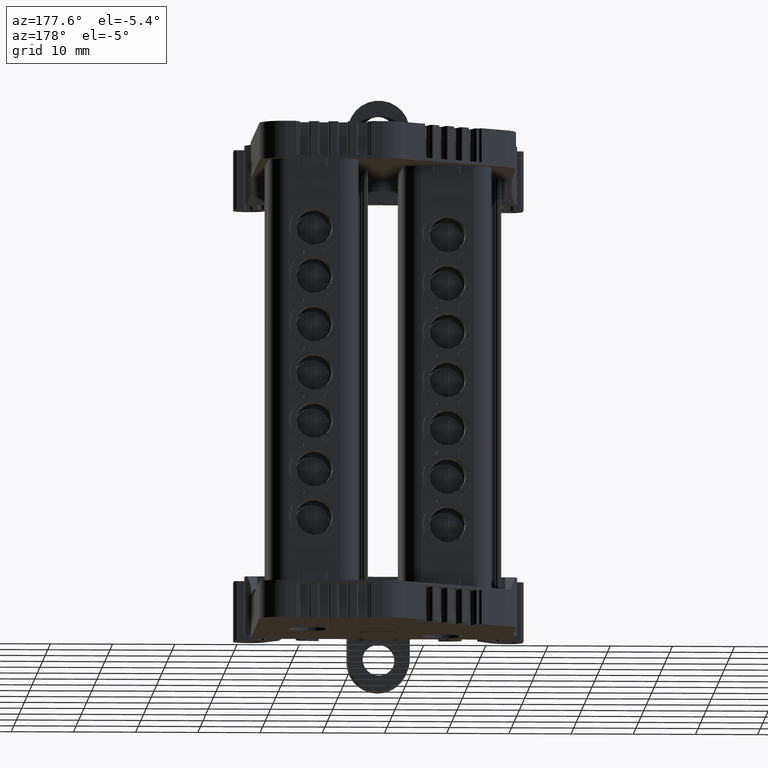
[diagram: clean part render]
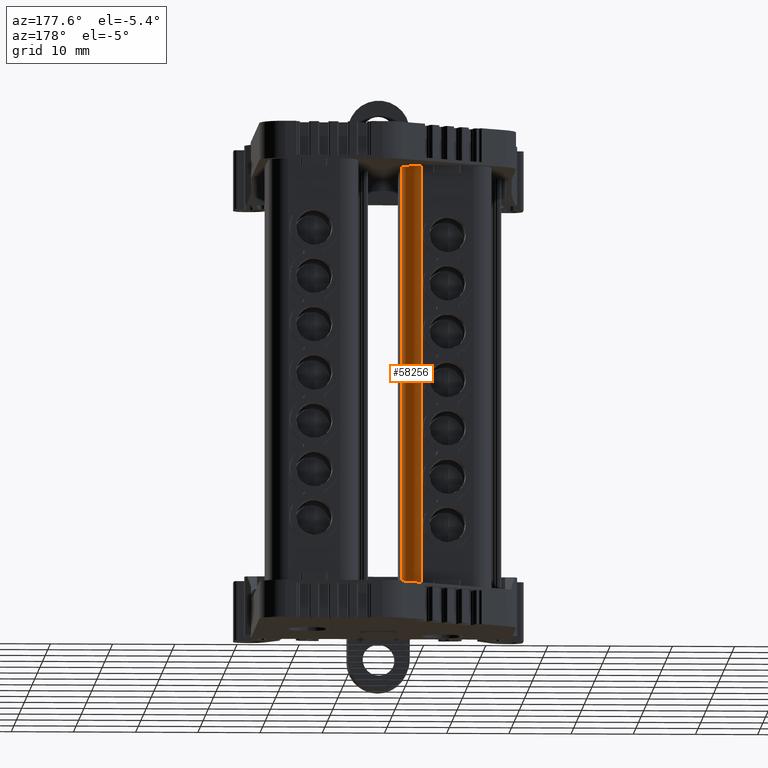
[diagram: same view with one face highlighted and labeled with its STEP entity id]
A machine part, auxiliary view. The second image highlights one B-rep face of the part: STEP entity #58256.
In plain terms, the highlighted cylindrical surface (edge-blend (fillet) strip) has radius 2.9989 mm, axis along (-0, 0, -1).
Its self-contained STEP definition (entity closure, byte-faithful):
#4459 = DIRECTION ( 'NONE',  ( -6.982962677686110500E-015, 1.604252062634190000E-014, -1.000000000000000000 ) ) ;
#4460 = DIRECTION ( 'NONE',  ( 0.0000000000000000000, 1.000000000000000000, 1.619688762850597300E-014 ) ) ;
#4490 = CARTESIAN_POINT ( 'NONE',  ( -52.29034639560725900, 33.55203185266567100, -23.91321079722527500 ) ) ;
#4502 = FACE_OUTER_BOUND ( 'NONE', #49983, .T. ) ;
#4506 = CYLINDRICAL_SURFACE ( 'NONE', #11100, 2.998863636113957600 ) ;
#7417 = VECTOR ( 'NONE', #22574, 1000.000000000000000 ) ;
#7440 = CIRCLE ( 'NONE', #7445, 2.998863636113957600 ) ;
#7445 = AXIS2_PLACEMENT_3D ( 'NONE', #22752, #22780, #22754 ) ;
#7513 = AXIS2_PLACEMENT_3D ( 'NONE', #23019, #22978, #22947 ) ;
#7537 = CIRCLE ( 'NONE', #7513, 2.998863636113957600 ) ;
#11100 = AXIS2_PLACEMENT_3D ( 'NONE', #4490, #4459, #4460 ) ;
#22440 = LINE ( 'NONE', #22572, #7417 ) ;
#22572 = CARTESIAN_POINT ( 'NONE',  ( -49.29193950095025700, 33.60436923969235300, -37.10821079711178100 ) ) ;
#22574 = DIRECTION ( 'NONE',  ( -6.700897813742065900E-015, -1.169646064160809000E-016, -1.000000000000000000 ) ) ;
#22752 = CARTESIAN_POINT ( 'NONE',  ( -52.29034639560686800, 33.55203185266477600, 31.97218928989240500 ) ) ;
#22754 = DIRECTION ( 'NONE',  ( 0.0000000000000000000, 1.000000000000000000, 1.619688762850597300E-014 ) ) ;
#22780 = DIRECTION ( 'NONE',  ( -6.982962677686110500E-015, 1.604252062634190000E-014, -1.000000000000000000 ) ) ;
#22947 = DIRECTION ( 'NONE',  ( 2.313841089786567700E-015, 1.000000000000000000, 1.619688762850597300E-014 ) ) ;
#22978 = DIRECTION ( 'NONE',  ( 6.982962677686110500E-015, -1.604252062634190000E-014, 1.000000000000000000 ) ) ;
#23019 = CARTESIAN_POINT ( 'NONE',  ( -52.29034639560733700, 33.55203185266586300, -36.09779384098942500 ) ) ;
#25816 = DIRECTION ( 'NONE',  ( 6.982962677686110500E-015, -1.604252062634190000E-014, 1.000000000000000000 ) ) ;
#25819 = LINE ( 'NONE', #25833, #49736 ) ;
#25833 = CARTESIAN_POINT ( 'NONE',  ( -52.29034639560725900, 36.55089548877963100, -23.91321079722522900 ) ) ;
#32435 = CARTESIAN_POINT ( 'NONE',  ( -52.29034639560731500, 36.55089548877997900, -36.09779384098939700 ) ) ;
#32481 = CARTESIAN_POINT ( 'NONE',  ( -52.29034639560686800, 36.55089548877930400, 31.97218928989235900 ) ) ;
#33047 = CARTESIAN_POINT ( 'NONE',  ( -49.29193950094992300, 33.60436923969236000, 31.97218928989244100 ) ) ;
#33117 = CARTESIAN_POINT ( 'NONE',  ( -49.29193950095030600, 33.60436923969243800, -36.09779384098944600 ) ) ;
#49736 = VECTOR ( 'NONE', #25816, 1000.000000000000000 ) ;
#49983 = EDGE_LOOP ( 'NONE', ( #55191, #55250, #55225, #55193 ) ) ;
#50230 = VERTEX_POINT ( 'NONE', #33047 ) ;
#50337 = VERTEX_POINT ( 'NONE', #33117 ) ;
#51466 = VERTEX_POINT ( 'NONE', #32435 ) ;
#51478 = VERTEX_POINT ( 'NONE', #32481 ) ;
#52785 = EDGE_CURVE ( 'NONE', #51466, #51478, #25819, .T. ) ;
#53398 = EDGE_CURVE ( 'NONE', #50230, #50337, #22440, .T. ) ;
#53427 = EDGE_CURVE ( 'NONE', #51478, #50230, #7440, .T. ) ;
#53463 = EDGE_CURVE ( 'NONE', #50337, #51466, #7537, .T. ) ;
#55191 = ORIENTED_EDGE ( 'NONE', *, *, #53463, .T. ) ;
#55193 = ORIENTED_EDGE ( 'NONE', *, *, #53398, .T. ) ;
#55225 = ORIENTED_EDGE ( 'NONE', *, *, #53427, .T. ) ;
#55250 = ORIENTED_EDGE ( 'NONE', *, *, #52785, .T. ) ;
#58256 = ADVANCED_FACE ( 'NONE', ( #4502 ), #4506, .T. ) ;